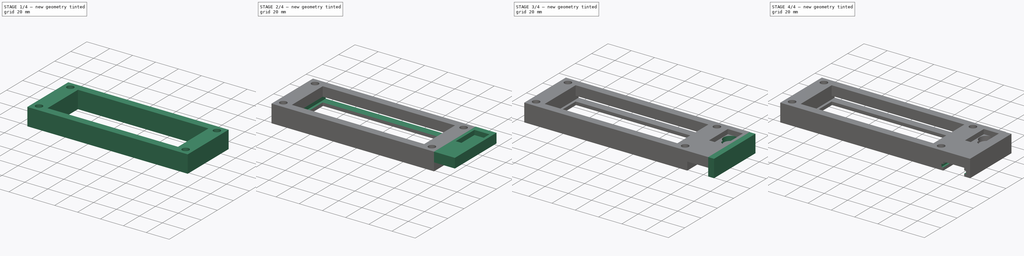
[diagram: build sequence overview — one tinted view per stage of 4, left to right]
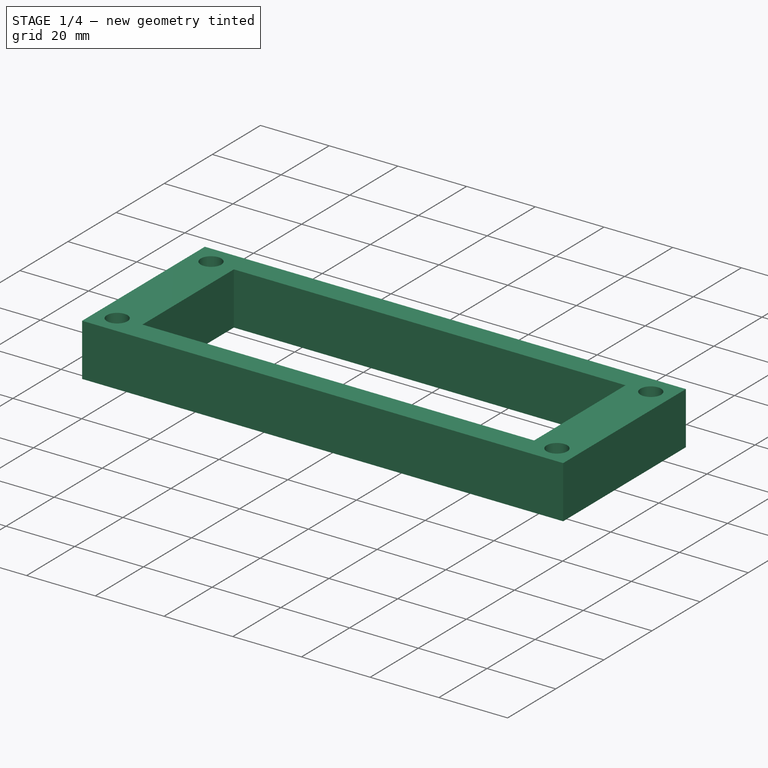
[diagram: stage 1 of 4 — iso view after this stage's code; geometry added in this stage tinted green]
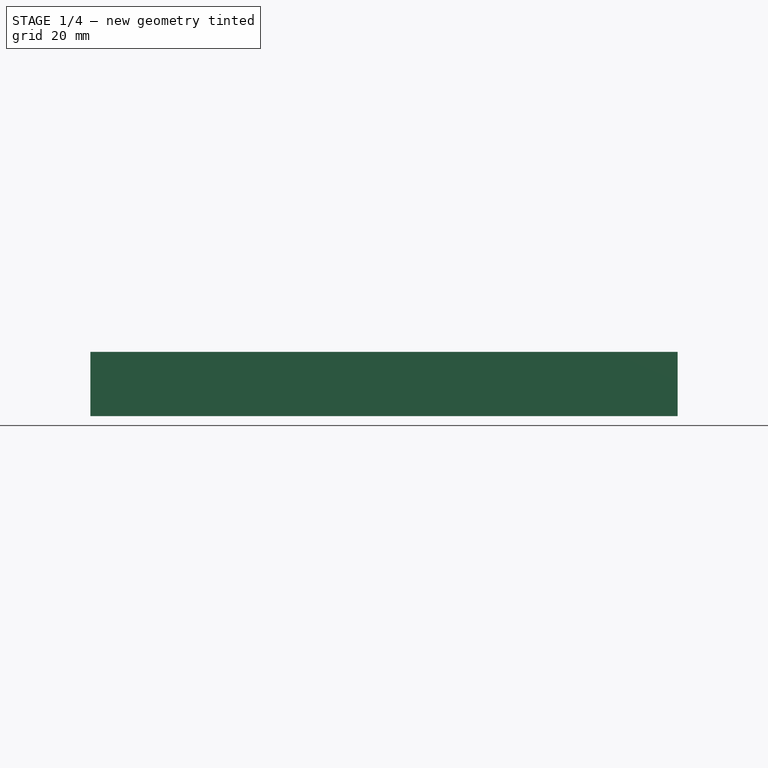
[diagram: stage 1 of 4 — front view after this stage's code; geometry added in this stage tinted green]
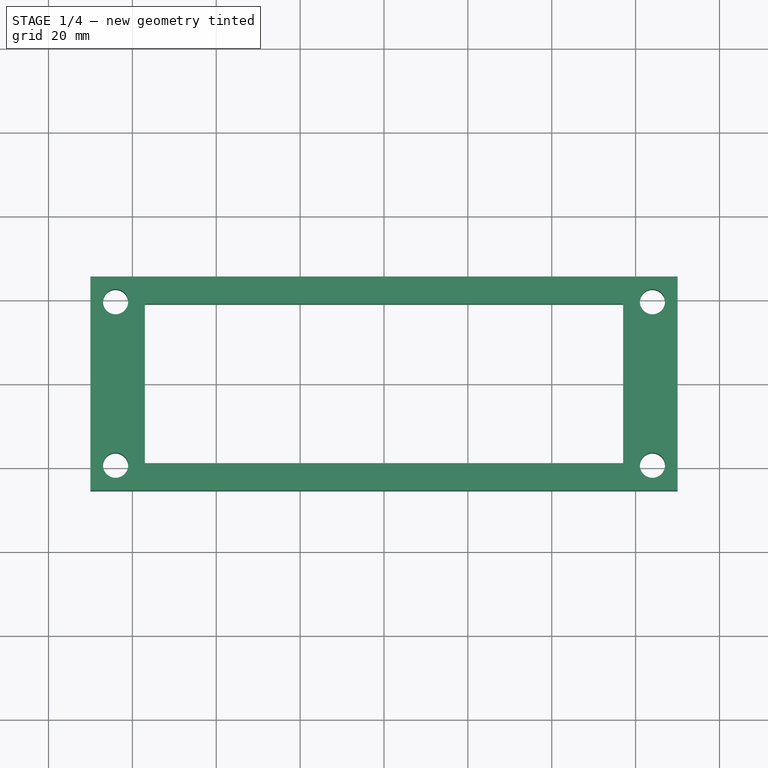
[diagram: stage 1 of 4 — top view after this stage's code; geometry added in this stage tinted green]
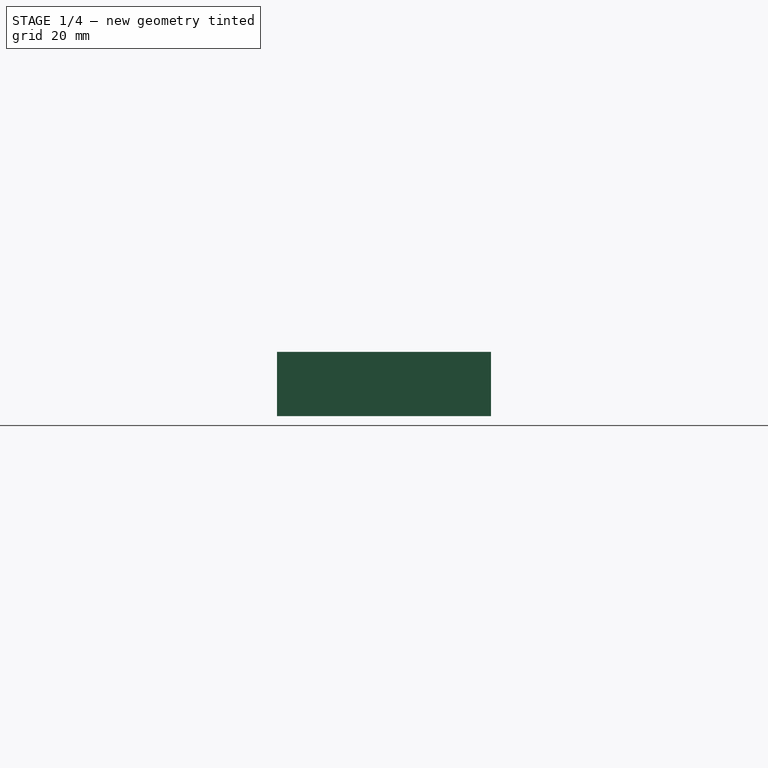
[diagram: stage 1 of 4 — right view after this stage's code; geometry added in this stage tinted green]
FCSTD DOCUMENT  (FreeCAD 0.16R6705 (Git))
Label: struttura_servo_zozzata
License: All rights reserved
LicenseURL: http://it.wikipedia.org/wiki/<copyright redacted>
objects: Sketcher::SketchObject×9, PartDesign::Pocket×5, PartDesign::Pad×4, Part::MultiFuse×1
note: 28 computed .brp shape members not serialized (recipe doc carries the construction recipe); baked Part::Feature solids carry a one-line shape summary decoded from their .brp

FEATURE [Sketcher::SketchObject] Sketch
  sketch-geometry (13):
    g0: LineSegment StartX=-70 StartY=-25.5 StartZ=0 EndX=70 EndY=-25.5 EndZ=0
    g1: LineSegment StartX=70 StartY=-25.5 StartZ=0 EndX=70 EndY=25.5 EndZ=0
    g2: LineSegment StartX=70 StartY=25.5 StartZ=0 EndX=-70 EndY=25.5 EndZ=0
    g3: LineSegment StartX=-70 StartY=25.5 StartZ=0 EndX=-70 EndY=-25.5 EndZ=0
    g4: LineSegment StartX=-57 StartY=-19 StartZ=0 EndX=57 EndY=-19 EndZ=0
    g5: LineSegment StartX=57 StartY=-19 StartZ=0 EndX=57 EndY=19 EndZ=0
    g6: LineSegment StartX=57 StartY=19 StartZ=0 EndX=-57 EndY=19 EndZ=0
    g7: LineSegment StartX=-57 StartY=19 StartZ=0 EndX=-57 EndY=-19 EndZ=0
    g8: Circle CenterX=-64 CenterY=19.5 CenterZ=0 NormalX=0 NormalY=0 NormalZ=1 Radius=3
    g9: Circle CenterX=-64 CenterY=-19.5 CenterZ=0 NormalX=0 NormalY=0 NormalZ=1 Radius=3
    g10: Circle CenterX=109.114 CenterY=-21.2777 CenterZ=0 NormalX=0 NormalY=0 NormalZ=1 Radius=0
    g11: Circle CenterX=64 CenterY=-19.5 CenterZ=0 NormalX=0 NormalY=0 NormalZ=1 Radius=3
    g12: Circle CenterX=64 CenterY=19.5 CenterZ=0 NormalX=0 NormalY=0 NormalZ=1 Radius=3
  constraints (33):
    c: Coincident(g0,g1)
    c: Coincident(g1,g2)
    c: Coincident(g2,g3)
    c: Coincident(g3,g0)
    c: Horizontal(g0)
    c: Horizontal(g2)
    c: Vertical(g1)
    c: Vertical(g3)
    c: Coincident(g4,g5)
    c: Coincident(g5,g6)
    c: Coincident(g6,g7)
    c: Coincident(g7,g4)
    c: Horizontal(g4)
    c: Horizontal(g6)
    c: Vertical(g5)
    c: Vertical(g7)
    c: Symmetric(g4,g4,g-2)
    c: Symmetric(g0,g0,g-2)
    c: DistanceX(g4,g0) = 13
    c: DistanceY(g0,g4) = 6.5
    c: DistanceY(g6,g2) = 6.5
    c: DistanceY(g4,g6) = 38
    c: Equal(g8,g9)
    c: Equal(g9,g11)
    c: Equal(g11,g12)
    c: Radius(g8) = 3
    c: DistanceX(g0,g0) = 140
    c: Symmetric(g5,g4,g-1)
    c: Symmetric(g9,g8,g-1)
    c: Symmetric(g12,g11,g-1)
    c: Symmetric(g8,g12,g-2)
    c: DistanceX(g12,g1) = 6
    c: DistanceY(g12,g1) = 6
FEATURE [PartDesign::Pad] Pad
  Length = 15
  Length2 = 100
  Sketch = -> Sketch
  Type = 0
FEATURE [Sketcher::SketchObject] Sketch008
  Placement = pos=(0,0,15) rot=(0,0,1;0rad)
  sketch-geometry (13):
    g0: LineSegment StartX=-70 StartY=-25.5 StartZ=0 EndX=70 EndY=-25.5 EndZ=0
    g1: LineSegment StartX=70 StartY=-25.5 StartZ=0 EndX=70 EndY=25.5 EndZ=0
    g2: LineSegment StartX=70 StartY=25.5 StartZ=0 EndX=-70 EndY=25.5 EndZ=0
    g3: LineSegment StartX=-70 StartY=25.5 StartZ=0 EndX=-70 EndY=-25.5 EndZ=0
    g4: LineSegment StartX=-57 StartY=-19 StartZ=0 EndX=57 EndY=-19 EndZ=0
    g5: LineSegment StartX=57 StartY=-19 StartZ=0 EndX=57 EndY=19 EndZ=0
    g6: LineSegment StartX=57 StartY=19 StartZ=0 EndX=-57 EndY=19 EndZ=0
    g7: LineSegment StartX=-57 StartY=19 StartZ=0 EndX=-57 EndY=-19 EndZ=0
    g8: Circle CenterX=-64 CenterY=19.5 CenterZ=0 NormalX=0 NormalY=0 NormalZ=1 Radius=3
    g9: Circle CenterX=-64 CenterY=-19.5 CenterZ=0 NormalX=0 NormalY=0 NormalZ=1 Radius=3
    g10: Circle CenterX=109.114 CenterY=-21.2777 CenterZ=0 NormalX=0 NormalY=0 NormalZ=1 Radius=0
    g11: Circle CenterX=64 CenterY=-19.5 CenterZ=0 NormalX=0 NormalY=0 NormalZ=1 Radius=3
    g12: Circle CenterX=64 CenterY=19.5 CenterZ=0 NormalX=0 NormalY=0 NormalZ=1 Radius=3
  constraints (33):
    c: Coincident(g0,g1)
    c: Coincident(g1,g2)
    c: Coincident(g2,g3)
    c: Coincident(g3,g0)
    c: Horizontal(g0)
    c: Horizontal(g2)
    c: Vertical(g1)
    c: Vertical(g3)
    c: Coincident(g4,g5)
    c: Coincident(g5,g6)
    c: Coincident(g6,g7)
    c: Coincident(g7,g4)
    c: Horizontal(g4)
    c: Horizontal(g6)
    c: Vertical(g5)
    c: Vertical(g7)
    c: Symmetric(g4,g4,g-2)
    c: Symmetric(g0,g0,g-2)
    c: DistanceX(g4,g0) = 13
    c: DistanceY(g0,g4) = 6.5
    c: DistanceY(g6,g2) = 6.5
    c: DistanceY(g4,g6) = 38
    c: Equal(g8,g9)
    c: Equal(g9,g11)
    c: Equal(g11,g12)
    c: Radius(g8) = 3
    c: DistanceX(g0,g0) = 140
    c: Symmetric(g5,g4,g-1)
    c: Symmetric(g9,g8,g-1)
    c: Symmetric(g12,g11,g-1)
    c: Symmetric(g8,g12,g-2)
    c: DistanceX(g12,g1) = 6
    c: DistanceY(g12,g1) = 6
FEATURE [PartDesign::Pad] Pad003
  Length = 0.3
  Length2 = 100
  Placement = pos=(0,0,15) rot=(0,0,1;0rad)
  Sketch = -> Sketch008
  Type = 0
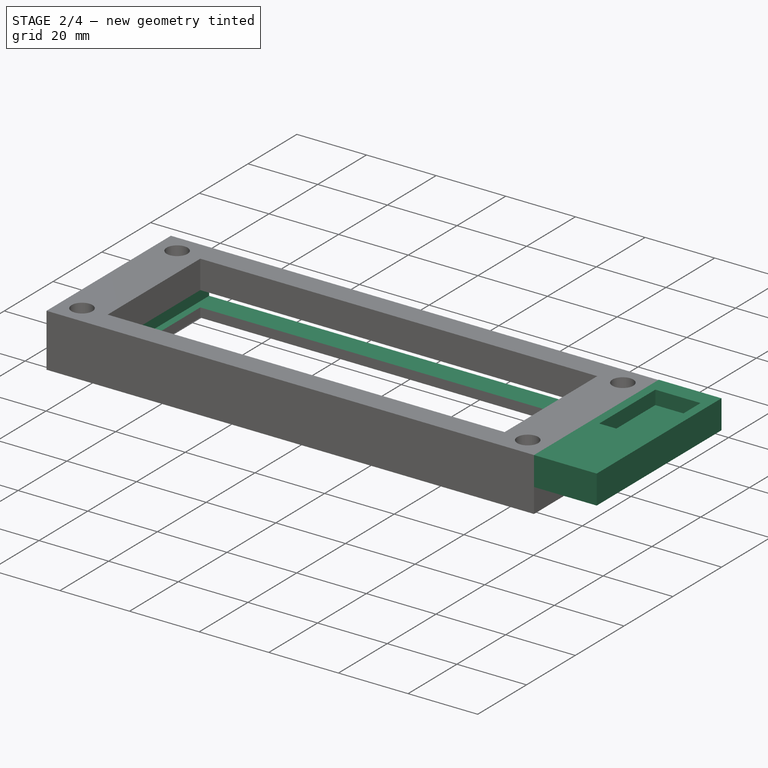
[diagram: stage 2 of 4 — iso view after this stage's code; geometry added in this stage tinted green]
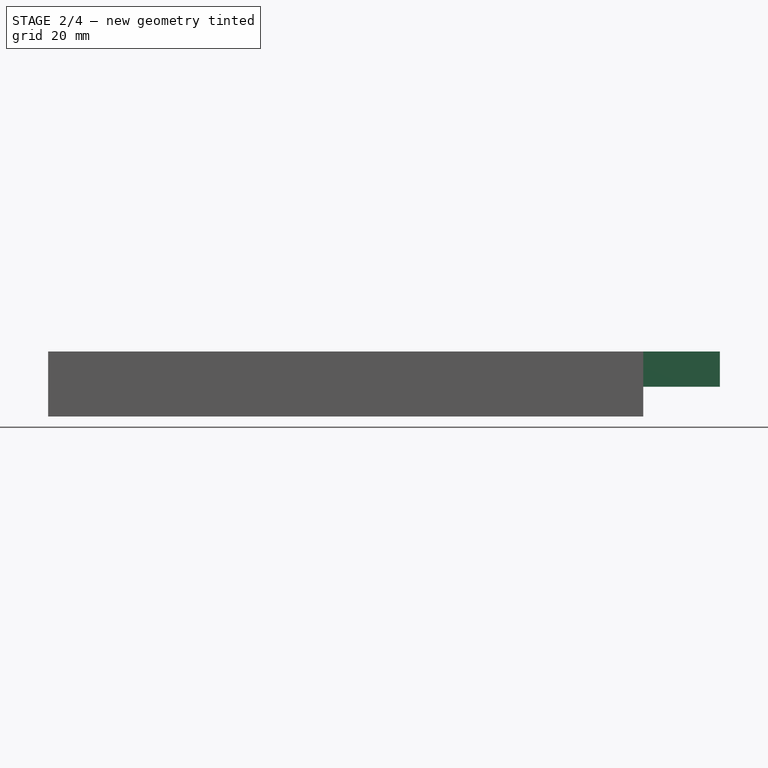
[diagram: stage 2 of 4 — front view after this stage's code; geometry added in this stage tinted green]
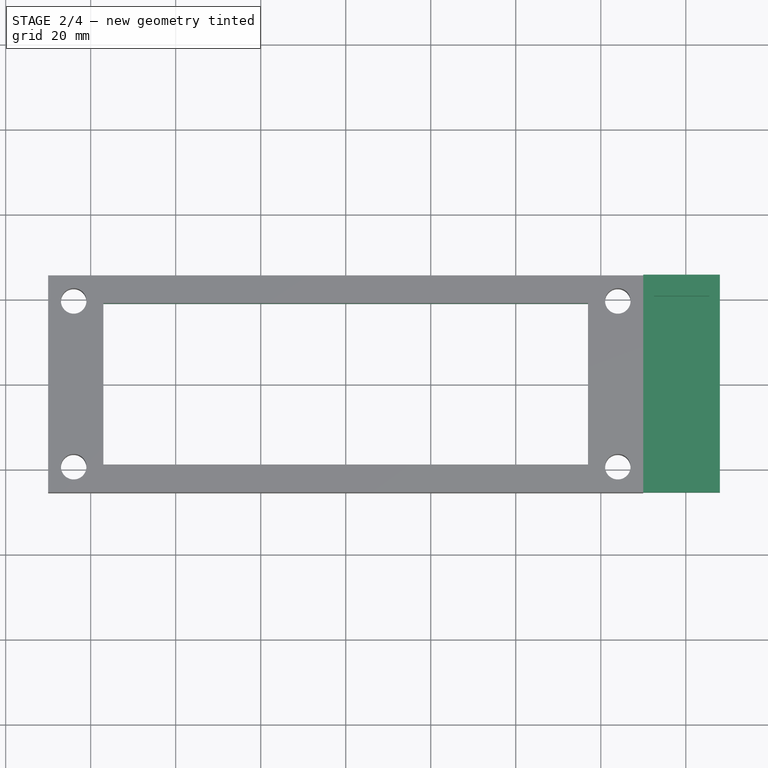
[diagram: stage 2 of 4 — top view after this stage's code; geometry added in this stage tinted green]
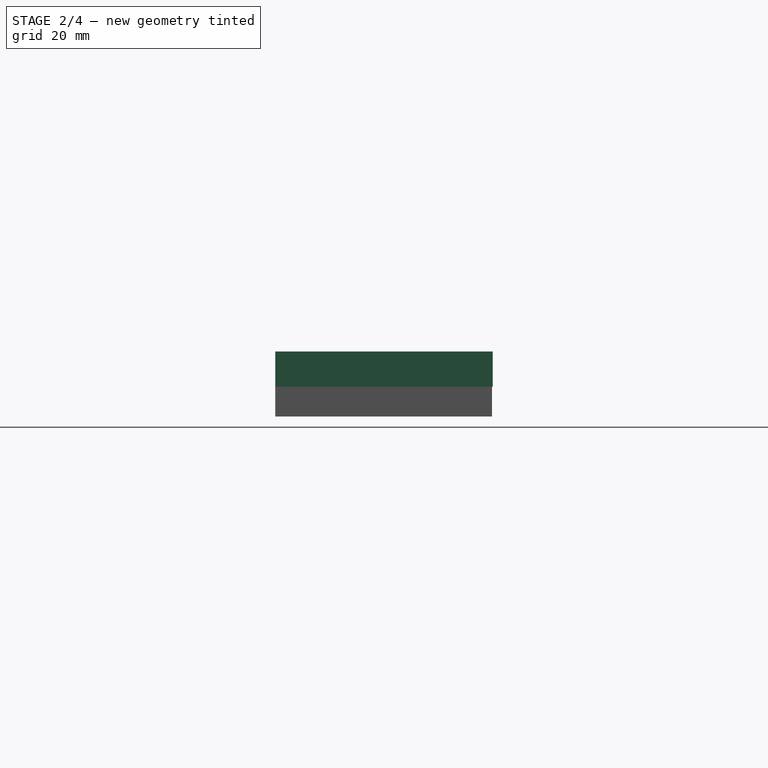
[diagram: stage 2 of 4 — right view after this stage's code; geometry added in this stage tinted green]
FEATURE [Sketcher::SketchObject] Sketch001
  ExternalGeometry = -> [Pad]
  Placement = pos=(0,25.5,0) rot=(0,0.707107,0.707107;3.14159rad)
  Support = -> Pad [Face3]
  sketch-geometry (4):
    g0: LineSegment StartX=-59 StartY=7.14921 StartZ=0 EndX=59 EndY=7.14921 EndZ=0
    g1: LineSegment StartX=59 StartY=7.14921 StartZ=0 EndX=59 EndY=2.64921 EndZ=0
    g2: LineSegment StartX=59 StartY=2.64921 StartZ=0 EndX=-59 EndY=2.64921 EndZ=0
    g3: LineSegment StartX=-59 StartY=2.64921 StartZ=0 EndX=-59 EndY=7.14921 EndZ=0
  constraints (11):
    c: Coincident(g0,g1)
    c: Coincident(g1,g2)
    c: Coincident(g2,g3)
    c: Coincident(g3,g0)
    c: Horizontal(g0)
    c: Horizontal(g2)
    c: Vertical(g1)
    c: Vertical(g3)
    c: Symmetric(g0,g0,g-2)
    c: DistanceX(g0,g-3) = 11
    c: DistanceY(g1,g0) = 4.5
FEATURE [PartDesign::Pocket] Pocket
  Length = 45
  Sketch = -> Sketch001
  Type = 0
FEATURE [Sketcher::SketchObject] Sketch002
  ExternalGeometry = -> [Pocket]
  Placement = pos=(70,0,0) rot=(0.57735,0.57735,0.57735;2.0944rad)
  Support = -> Pocket [Face3]
  sketch-geometry (4):
    g0: LineSegment StartX=-25.5 StartY=15.3 StartZ=0 EndX=25.6753 EndY=15.3 EndZ=0
    g1: LineSegment StartX=25.6753 StartY=15.3 StartZ=0 EndX=25.6753 EndY=7 EndZ=0
    g2: LineSegment StartX=25.6753 StartY=7 StartZ=0 EndX=-25.5 EndY=7 EndZ=0
    g3: LineSegment StartX=-25.5 StartY=7 StartZ=0 EndX=-25.5 EndY=15.3 EndZ=0
  constraints (10):
    c: Coincident(g1,g2)
    c: Coincident(g2,g3)
    c: Horizontal(g0)
    c: Horizontal(g2)
    c: Vertical(g1)
    c: Vertical(g3)
    c: DistanceY(g1,g0) = 8.3
    c: Coincident(g3,g0)
    c: Coincident(g0,g1)
    c: DistanceY(g1,g-3) = 8
FEATURE [PartDesign::Pad] Pad001
  Length = 18
  Length2 = 100
  Sketch = -> Sketch002
  Type = 0
FEATURE [Sketcher::SketchObject] Sketch003
  ExternalGeometry = -> [Pad001]
  Placement = pos=(0,0,15.3) rot=(0,0,1;0rad)
  Support = -> Pad001 [Face26]
  sketch-geometry (4):
    g0: LineSegment StartX=72.5 StartY=20.6753 StartZ=0 EndX=85.5 EndY=20.6753 EndZ=0
    g1: LineSegment StartX=85.5 StartY=20.6753 StartZ=0 EndX=85.5 EndY=-2.32474 EndZ=0
    g2: LineSegment StartX=85.5 StartY=-2.32474 StartZ=0 EndX=72.5 EndY=-2.32474 EndZ=0
    g3: LineSegment StartX=72.5 StartY=-2.32474 StartZ=0 EndX=72.5 EndY=20.6753 EndZ=0
  constraints (12):
    c: Coincident(g0,g1)
    c: Coincident(g1,g2)
    c: Coincident(g2,g3)
    c: Coincident(g3,g0)
    c: Horizontal(g0)
    c: Horizontal(g2)
    c: Vertical(g1)
    c: Vertical(g3)
    c: DistanceX(g0,g0) = 13
    c: DistanceY(g1,g1) = 23
    c: DistanceY(g0,g-3) = 5
    c: DistanceX(g0,g-3) = 2.5
FEATURE [PartDesign::Pocket] Pocket001
  Length = 4
  Sketch = -> Sketch003
  Type = 0
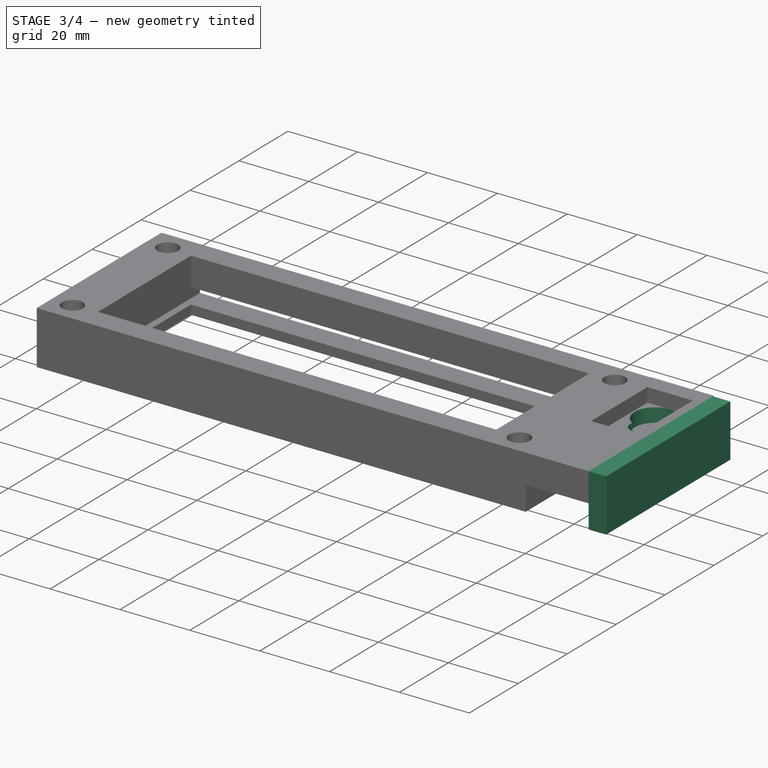
[diagram: stage 3 of 4 — iso view after this stage's code; geometry added in this stage tinted green]
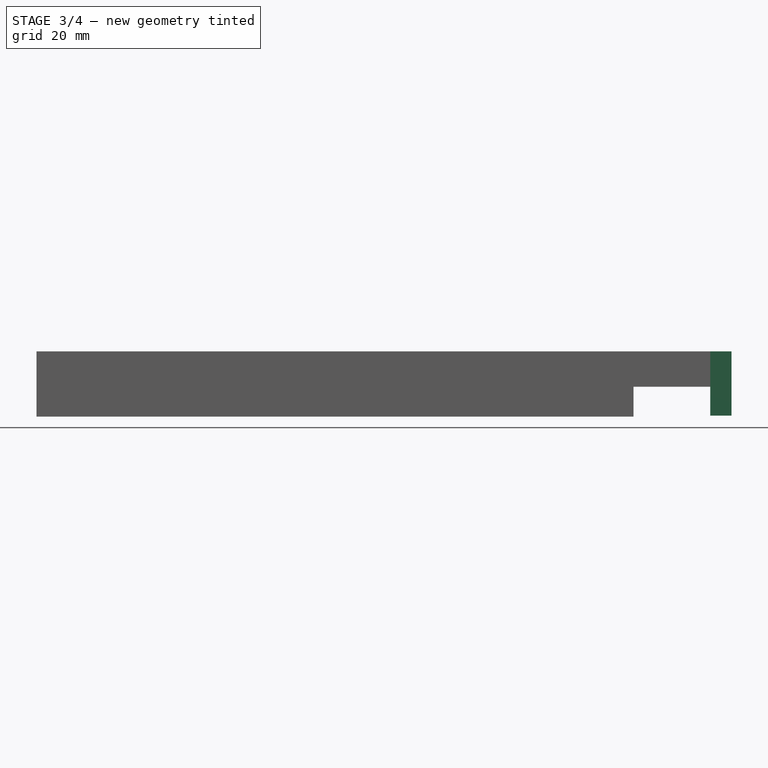
[diagram: stage 3 of 4 — front view after this stage's code; geometry added in this stage tinted green]
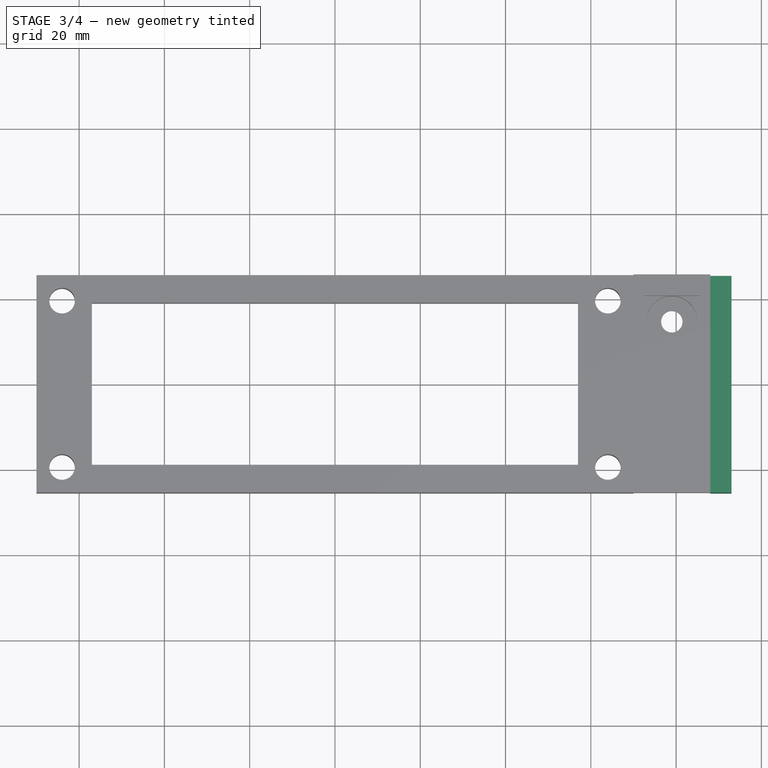
[diagram: stage 3 of 4 — top view after this stage's code; geometry added in this stage tinted green]
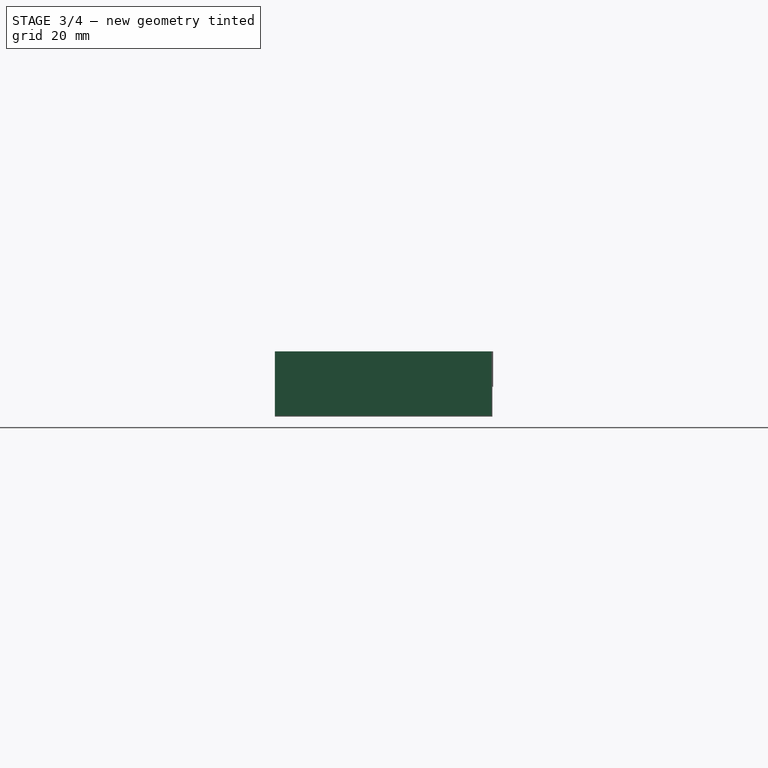
[diagram: stage 3 of 4 — right view after this stage's code; geometry added in this stage tinted green]
FEATURE [Sketcher::SketchObject] Sketch004
  ExternalGeometry = -> [Pocket001]
  Placement = pos=(0,0,11.3) rot=(0,0,1;0rad)
  Support = -> Pocket001 [Face34]
  sketch-geometry (2):
    g0: ArcOfCircle CenterX=79 CenterY=14.6753 CenterZ=0 NormalX=0 NormalY=0 NormalZ=1 Radius=6 StartAngle=5.21775 EndAngle=10.4902
    g1: ArcOfCircle CenterX=79 CenterY=8.67526 CenterZ=0 NormalX=0 NormalY=0 NormalZ=1 Radius=3 StartAngle=2.88891 EndAngle=6.53587
  constraints (9):
    c: Radius(g0) = 6
    c: Tangent(g-3,g0)
    c: DistanceX(g0,g-4) = 6.5
    c: Radius(g1) = 3
    c: PointOnObject(g1,g0)
    c: PointOnObject(g1,g0)
    c: DistanceX(g1,g0) = 0
    c: Coincident(g1,g0)
    c: Coincident(g0,g1)
FEATURE [PartDesign::Pocket] Pocket002
  Length = 4
  Sketch = -> Sketch004
  Type = 0
FEATURE [Sketcher::SketchObject] Sketch005
  ExternalGeometry = -> [Pocket002]
  Placement = pos=(0,0,7.3) rot=(0,0,1;0rad)
  Support = -> Pocket002 [Face37]
  sketch-geometry (1):
    g0: Circle CenterX=79 CenterY=14.6753 CenterZ=0 NormalX=0 NormalY=0 NormalZ=1 Radius=2.5
  constraints (1):
    c: Radius(g0) = 2.5
FEATURE [PartDesign::Pocket] Pocket003
  Length = 5
  Sketch = -> Sketch005
  Type = 1
FEATURE [Sketcher::SketchObject] Sketch006
  ExternalGeometry = -> [Pocket003]
  Placement = pos=(88,0,0) rot=(0.57735,0.57735,0.57735;2.0944rad)
  Support = -> Pocket003 [Face29]
  sketch-geometry (4):
    g0: LineSegment StartX=-25.5 StartY=15.3 StartZ=0 EndX=25.3015 EndY=15.3 EndZ=0
    g1: LineSegment StartX=25.3015 StartY=15.3 StartZ=0 EndX=25.3015 EndY=0.242344 EndZ=0
    g2: LineSegment StartX=25.3015 StartY=0.242344 StartZ=0 EndX=-25.5 EndY=0.242344 EndZ=0
    g3: LineSegment StartX=-25.5 StartY=0.242344 StartZ=0 EndX=-25.5 EndY=15.3 EndZ=0
  constraints (8):
    c: Coincident(g0,g1)
    c: Coincident(g1,g2)
    c: Coincident(g2,g3)
    c: Coincident(g3,g0)
    c: Horizontal(g0)
    c: Horizontal(g2)
    c: Vertical(g1)
    c: Vertical(g3)
FEATURE [PartDesign::Pad] Pad002
  Length = 5
  Length2 = 100
  Sketch = -> Sketch006
  Type = 0
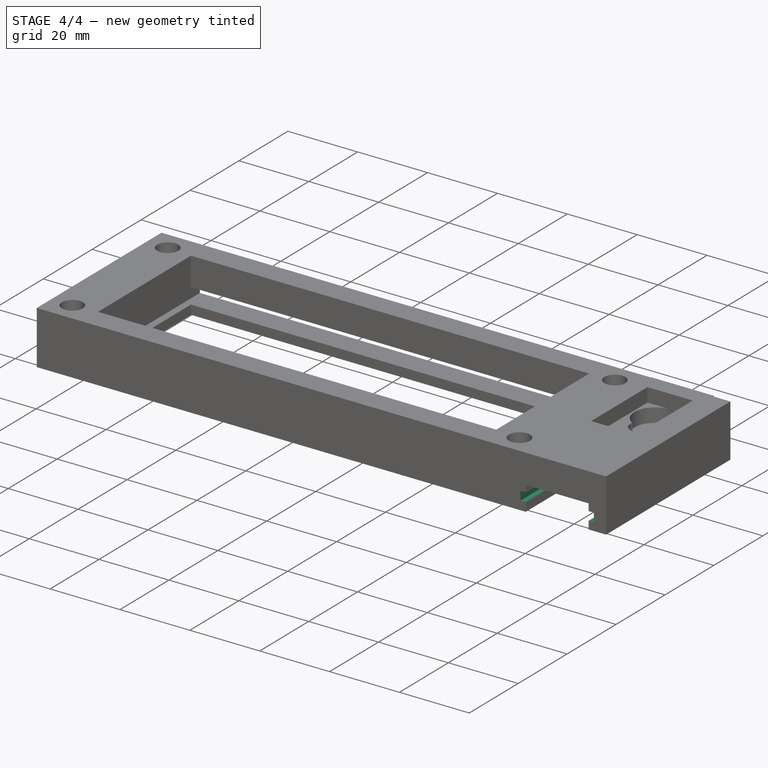
[diagram: stage 4 of 4 — iso view after this stage's code; geometry added in this stage tinted green]
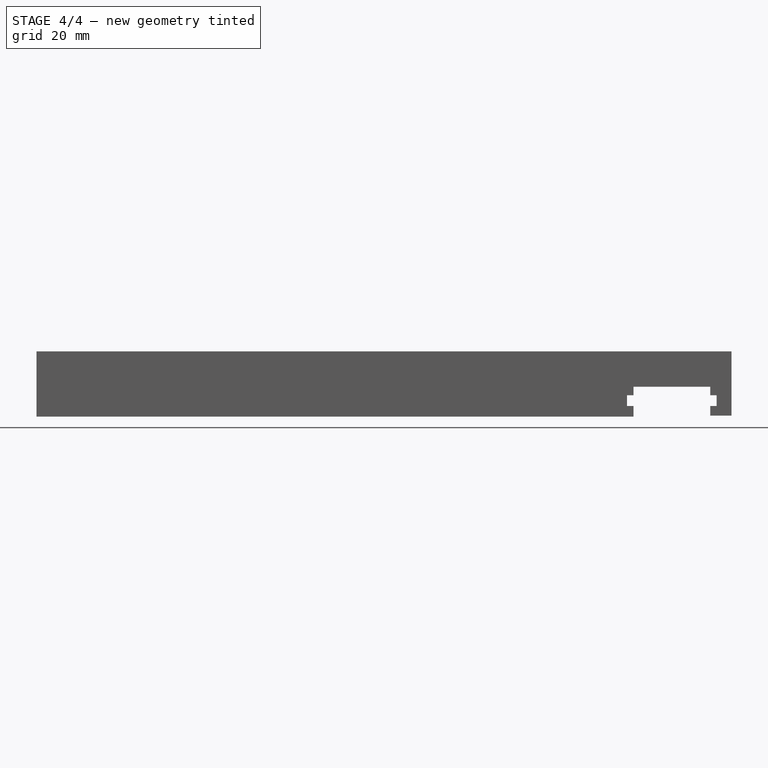
[diagram: stage 4 of 4 — front view after this stage's code; geometry added in this stage tinted green]
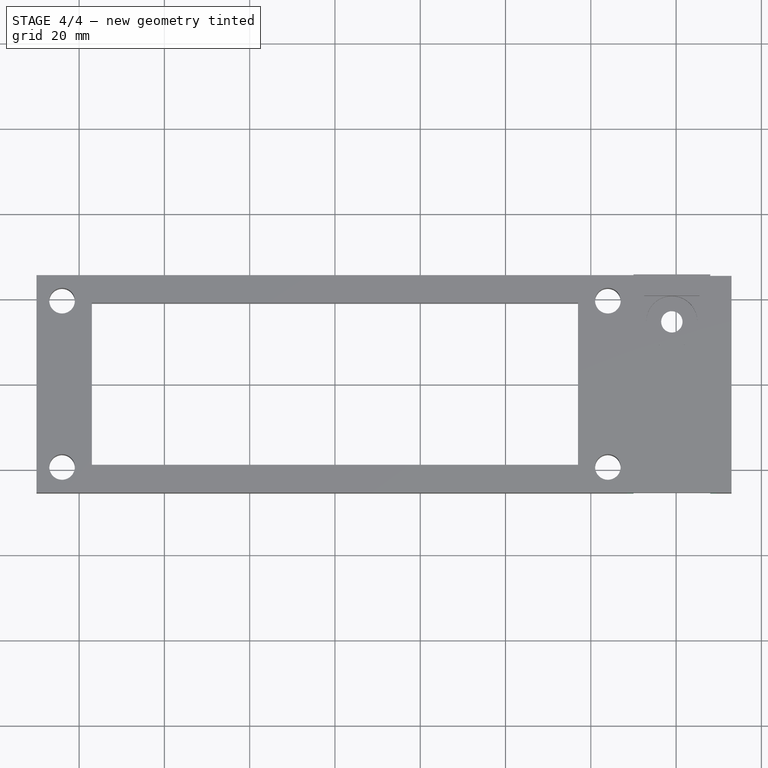
[diagram: stage 4 of 4 — top view after this stage's code; geometry added in this stage tinted green]
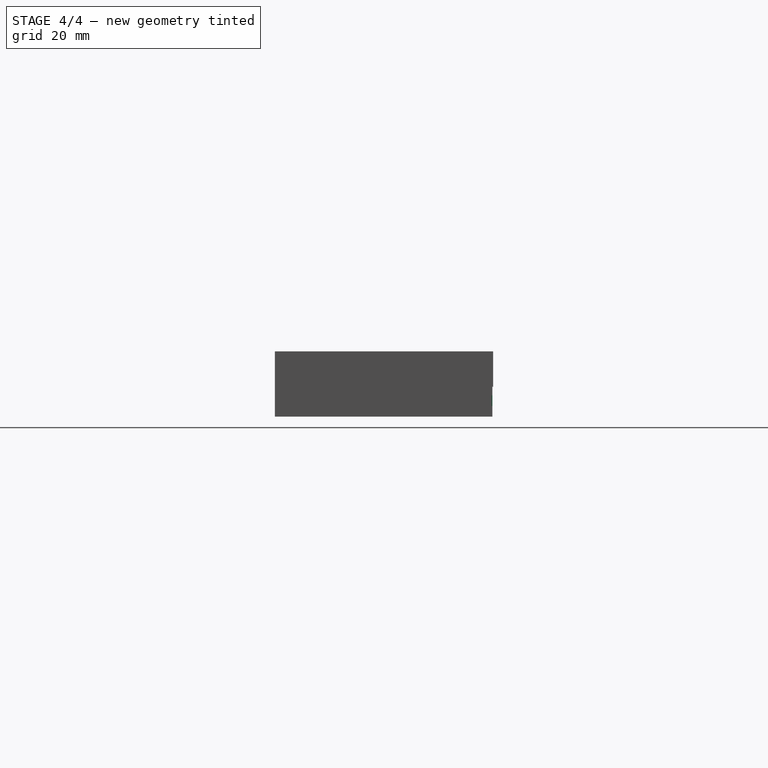
[diagram: stage 4 of 4 — right view after this stage's code; geometry added in this stage tinted green]
FEATURE [Sketcher::SketchObject] Sketch007
  ExternalGeometry = -> [Pad002]
  Placement = pos=(0,25.5,0) rot=(0,0.707107,0.707107;3.14159rad)
  Support = -> Pad002 [Face2]
  sketch-geometry (4):
    g0: LineSegment StartX=-89.5 StartY=5 StartZ=0 EndX=-68.5 EndY=5 EndZ=0
    g1: LineSegment StartX=-68.5 StartY=5 StartZ=0 EndX=-68.5 EndY=2.5 EndZ=0
    g2: LineSegment StartX=-68.5 StartY=2.5 StartZ=0 EndX=-89.5 EndY=2.5 EndZ=0
    g3: LineSegment StartX=-89.5 StartY=2.5 StartZ=0 EndX=-89.5 EndY=5 EndZ=0
  constraints (12):
    c: Coincident(g0,g1)
    c: Coincident(g1,g2)
    c: Coincident(g2,g3)
    c: Coincident(g3,g0)
    c: Horizontal(g0)
    c: Horizontal(g2)
    c: Vertical(g1)
    c: Vertical(g3)
    c: DistanceY(g2,g0) = 2.5
    c: DistanceY(g-1,g2) = 2.5
    c: DistanceX(g2,g-3) = 1.5
    c: DistanceX(g-4,g1) = 1.5
FEATURE [PartDesign::Pocket] Pocket004
  Length = 5
  Sketch = -> Sketch007
  Type = 1
FEATURE [Part::MultiFuse] Fusion
  Shapes = -> [Pocket004,Pad003]
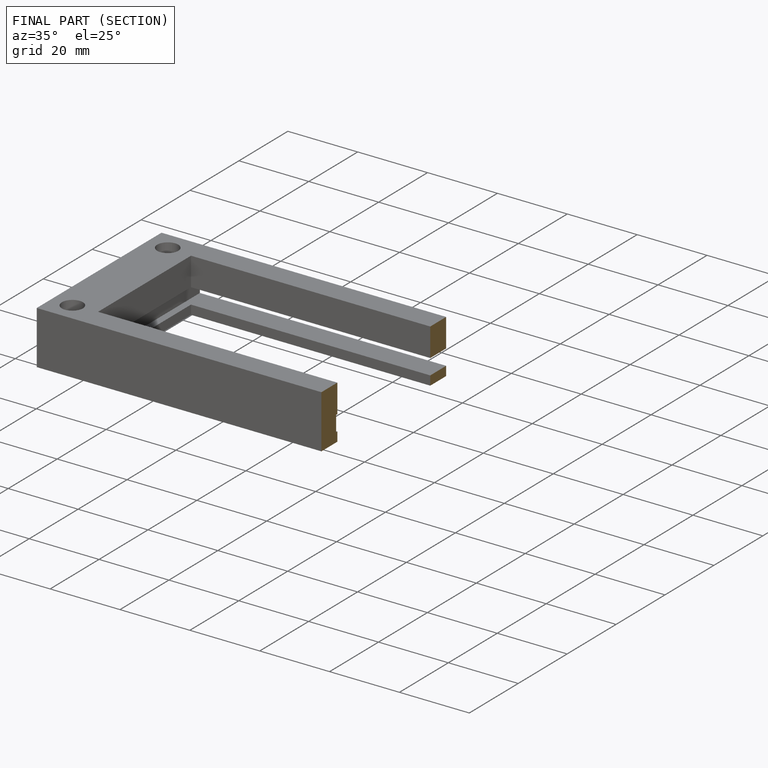
[diagram: finished part — half-section view (interior)]
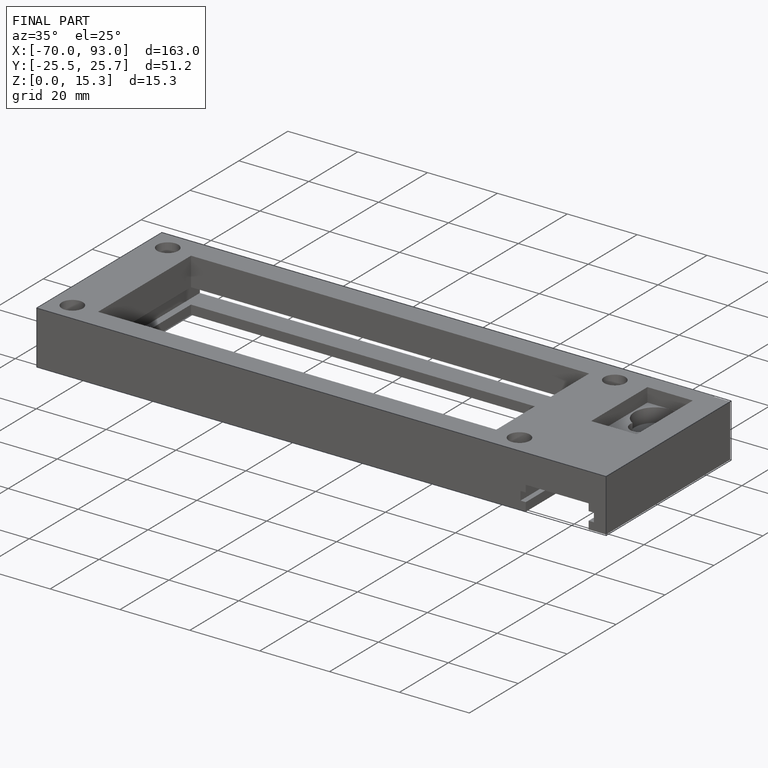
[diagram: finished part — iso view with bounding-box wireframe]
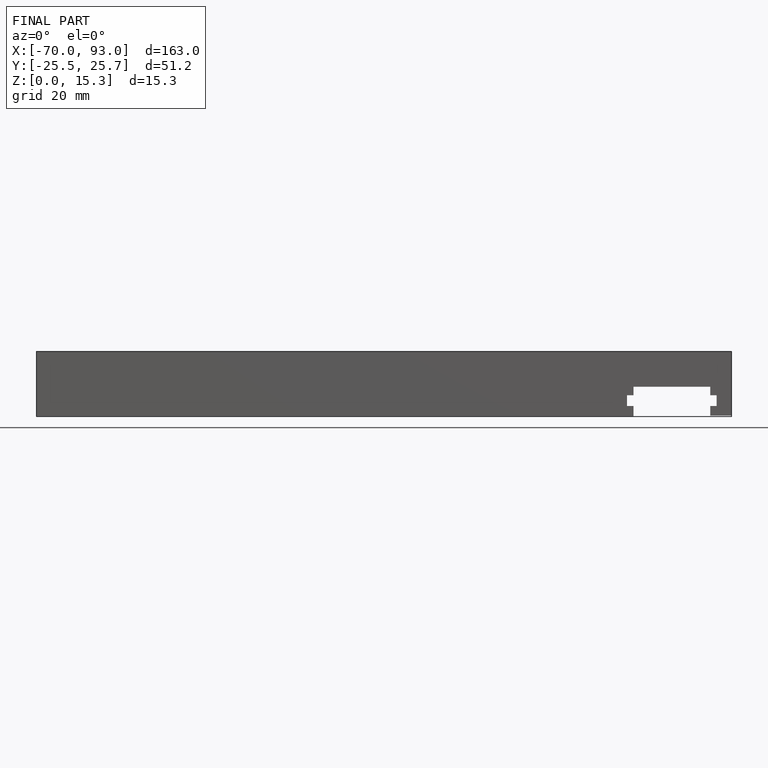
[diagram: finished part — front view with bounding-box wireframe]
